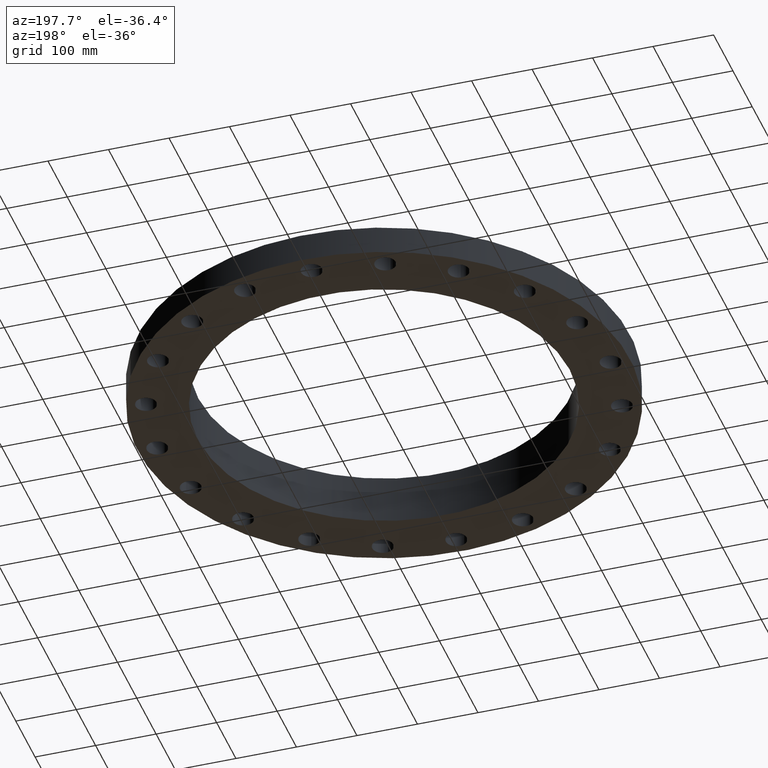
[diagram: clean part render]
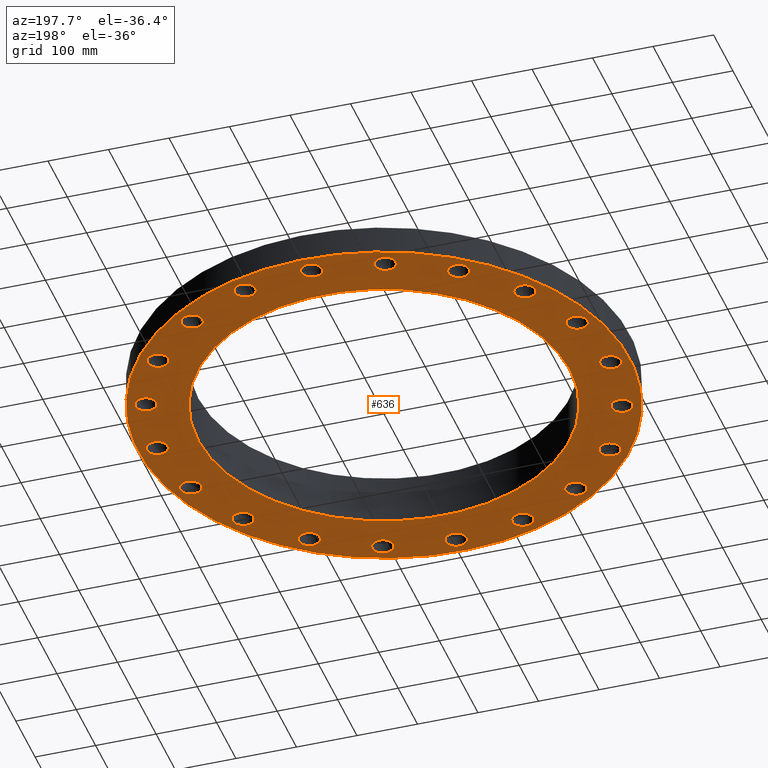
[diagram: same view with one face highlighted and labeled with its STEP entity id]
A machine part, auxiliary view. The second image highlights one B-rep face of the part: STEP entity #636.
In plain terms, the highlighted planar face has unit normal (0, 0, 1).
Its self-contained STEP definition (entity closure, byte-faithful):
#51=AXIS2_PLACEMENT_3D('Circle Axis2P3D',#49,#50,$) ;
#77=AXIS2_PLACEMENT_3D('Circle Axis2P3D',#75,#76,$) ;
#122=AXIS2_PLACEMENT_3D('Circle Axis2P3D',#120,#121,$) ;
#139=AXIS2_PLACEMENT_3D('Circle Axis2P3D',#137,#138,$) ;
#165=AXIS2_PLACEMENT_3D('Circle Axis2P3D',#163,#164,$) ;
#191=AXIS2_PLACEMENT_3D('Circle Axis2P3D',#189,#190,$) ;
#280=AXIS2_PLACEMENT_3D('Plane Axis2P3D',#277,#278,#279) ;
#296=AXIS2_PLACEMENT_3D('Circle Axis2P3D',#294,#295,$) ;
#305=AXIS2_PLACEMENT_3D('Circle Axis2P3D',#303,#304,$) ;
#314=AXIS2_PLACEMENT_3D('Circle Axis2P3D',#312,#313,$) ;
#323=AXIS2_PLACEMENT_3D('Circle Axis2P3D',#321,#322,$) ;
#332=AXIS2_PLACEMENT_3D('Circle Axis2P3D',#330,#331,$) ;
#341=AXIS2_PLACEMENT_3D('Circle Axis2P3D',#339,#340,$) ;
#350=AXIS2_PLACEMENT_3D('Circle Axis2P3D',#348,#349,$) ;
#359=AXIS2_PLACEMENT_3D('Circle Axis2P3D',#357,#358,$) ;
#368=AXIS2_PLACEMENT_3D('Circle Axis2P3D',#366,#367,$) ;
#377=AXIS2_PLACEMENT_3D('Circle Axis2P3D',#375,#376,$) ;
#386=AXIS2_PLACEMENT_3D('Circle Axis2P3D',#384,#385,$) ;
#395=AXIS2_PLACEMENT_3D('Circle Axis2P3D',#393,#394,$) ;
#404=AXIS2_PLACEMENT_3D('Circle Axis2P3D',#402,#403,$) ;
#413=AXIS2_PLACEMENT_3D('Circle Axis2P3D',#411,#412,$) ;
#422=AXIS2_PLACEMENT_3D('Circle Axis2P3D',#420,#421,$) ;
#431=AXIS2_PLACEMENT_3D('Circle Axis2P3D',#429,#430,$) ;
#440=AXIS2_PLACEMENT_3D('Circle Axis2P3D',#438,#439,$) ;
#449=AXIS2_PLACEMENT_3D('Circle Axis2P3D',#447,#448,$) ;
#458=AXIS2_PLACEMENT_3D('Circle Axis2P3D',#456,#457,$) ;
#467=AXIS2_PLACEMENT_3D('Circle Axis2P3D',#465,#466,$) ;
#476=AXIS2_PLACEMENT_3D('Circle Axis2P3D',#474,#475,$) ;
#485=AXIS2_PLACEMENT_3D('Circle Axis2P3D',#483,#484,$) ;
#494=AXIS2_PLACEMENT_3D('Circle Axis2P3D',#492,#493,$) ;
#503=AXIS2_PLACEMENT_3D('Circle Axis2P3D',#501,#502,$) ;
#512=AXIS2_PLACEMENT_3D('Circle Axis2P3D',#510,#511,$) ;
#521=AXIS2_PLACEMENT_3D('Circle Axis2P3D',#519,#520,$) ;
#530=AXIS2_PLACEMENT_3D('Circle Axis2P3D',#528,#529,$) ;
#539=AXIS2_PLACEMENT_3D('Circle Axis2P3D',#537,#538,$) ;
#548=AXIS2_PLACEMENT_3D('Circle Axis2P3D',#546,#547,$) ;
#557=AXIS2_PLACEMENT_3D('Circle Axis2P3D',#555,#556,$) ;
#566=AXIS2_PLACEMENT_3D('Circle Axis2P3D',#564,#565,$) ;
#575=AXIS2_PLACEMENT_3D('Circle Axis2P3D',#573,#574,$) ;
#584=AXIS2_PLACEMENT_3D('Circle Axis2P3D',#582,#583,$) ;
#593=AXIS2_PLACEMENT_3D('Circle Axis2P3D',#591,#592,$) ;
#602=AXIS2_PLACEMENT_3D('Circle Axis2P3D',#600,#601,$) ;
#611=AXIS2_PLACEMENT_3D('Circle Axis2P3D',#609,#610,$) ;
#620=AXIS2_PLACEMENT_3D('Circle Axis2P3D',#618,#619,$) ;
#629=AXIS2_PLACEMENT_3D('Circle Axis2P3D',#627,#628,$) ;
#44=CARTESIAN_POINT('Vertex',(14.1466619888,0.329605057792,0.)) ;
#49=CARTESIAN_POINT('Axis2P3D Location',(14.7500000001,0.,0.)) ;
#53=CARTESIAN_POINT('Vertex',(15.3533380114,-0.329605057792,0.)) ;
#75=CARTESIAN_POINT('Axis2P3D Location',(14.7500000001,0.,0.)) ;
#101=CARTESIAN_POINT('Vertex',(14.0413209903,7.6708086177,0.)) ;
#117=CARTESIAN_POINT('Vertex',(-14.0413209903,-7.6708086177,0.)) ;
#120=CARTESIAN_POINT('Axis2P3D Location',(0.,0.,0.)) ;
#137=CARTESIAN_POINT('Axis2P3D Location',(0.,0.,0.)) ;
#158=CARTESIAN_POINT('Vertex',(10.6143610861,-5.79865188944,0.)) ;
#163=CARTESIAN_POINT('Axis2P3D Location',(-6.64385432059E-016,-2.09805925913E-016,0.)) ;
#167=CARTESIAN_POINT('Vertex',(-10.6143610861,5.79865188944,0.)) ;
#189=CARTESIAN_POINT('Axis2P3D Location',(-6.64385432059E-016,-2.09805925913E-016,0.)) ;
#277=CARTESIAN_POINT('Axis2P3D Location',(0.,0.,0.)) ;
#294=CARTESIAN_POINT('Axis2P3D Location',(14.0280836154,4.55800066705,0.)) ;
#298=CARTESIAN_POINT('Vertex',(13.3524215039,4.68503200622,0.)) ;
#300=CARTESIAN_POINT('Vertex',(14.7037457269,4.43096932788,0.)) ;
#303=CARTESIAN_POINT('Axis2P3D Location',(14.0280836154,4.55800066705,0.)) ;
#312=CARTESIAN_POINT('Axis2P3D Location',(11.9330006671,8.66983247135,0.)) ;
#316=CARTESIAN_POINT('Vertex',(11.2511529705,8.58185537934,0.)) ;
#318=CARTESIAN_POINT('Vertex',(12.6148483636,8.75780956335,0.)) ;
#321=CARTESIAN_POINT('Axis2P3D Location',(11.9330006671,8.66983247135,0.)) ;
#330=CARTESIAN_POINT('Axis2P3D Location',(8.66983247135,11.9330006671,0.)) ;
#334=CARTESIAN_POINT('Vertex',(8.04854319297,11.6386269546,0.)) ;
#336=CARTESIAN_POINT('Vertex',(9.29112174972,12.2273743795,0.)) ;
#339=CARTESIAN_POINT('Axis2P3D Location',(8.66983247135,11.9330006671,0.)) ;
#348=CARTESIAN_POINT('Axis2P3D Location',(4.55800066705,14.0280836154,0.)) ;
#352=CARTESIAN_POINT('Vertex',(4.05808593019,13.5561286325,0.)) ;
#354=CARTESIAN_POINT('Vertex',(5.05791540391,14.5000385983,0.)) ;
#357=CARTESIAN_POINT('Axis2P3D Location',(4.55800066705,14.0280836154,0.)) ;
#366=CARTESIAN_POINT('Axis2P3D Location',(4.05624790099E-015,14.7500000001,0.)) ;
#370=CARTESIAN_POINT('Vertex',(-0.329605057792,14.1466619888,0.)) ;
#372=CARTESIAN_POINT('Vertex',(0.329605057792,15.3533380114,0.)) ;
#375=CARTESIAN_POINT('Axis2P3D Location',(4.96540691328E-015,14.7500000001,0.)) ;
#384=CARTESIAN_POINT('Axis2P3D Location',(-4.55800066705,14.0280836154,0.)) ;
#388=CARTESIAN_POINT('Vertex',(-4.68503200622,13.3524215039,0.)) ;
#390=CARTESIAN_POINT('Vertex',(-4.43096932788,14.7037457269,0.)) ;
#393=CARTESIAN_POINT('Axis2P3D Location',(-4.55800066705,14.0280836154,0.)) ;
#402=CARTESIAN_POINT('Axis2P3D Location',(-8.66983247135,11.9330006671,0.)) ;
#406=CARTESIAN_POINT('Vertex',(-8.58185537934,11.2511529705,0.)) ;
#408=CARTESIAN_POINT('Vertex',(-8.75780956335,12.6148483636,0.)) ;
#411=CARTESIAN_POINT('Axis2P3D Location',(-8.66983247135,11.9330006671,0.)) ;
#420=CARTESIAN_POINT('Axis2P3D Location',(-11.9330006671,8.66983247135,0.)) ;
#424=CARTESIAN_POINT('Vertex',(-11.6386269546,8.04854319297,0.)) ;
#426=CARTESIAN_POINT('Vertex',(-12.2273743795,9.29112174972,0.)) ;
#429=CARTESIAN_POINT('Axis2P3D Location',(-11.9330006671,8.66983247135,0.)) ;
#438=CARTESIAN_POINT('Axis2P3D Location',(-14.0280836154,4.55800066705,0.)) ;
#442=CARTESIAN_POINT('Vertex',(-13.5561286325,4.05808593019,0.)) ;
#444=CARTESIAN_POINT('Vertex',(-14.5000385983,5.05791540391,0.)) ;
#447=CARTESIAN_POINT('Axis2P3D Location',(-14.0280836154,4.55800066705,0.)) ;
#456=CARTESIAN_POINT('Axis2P3D Location',(-14.7500000001,7.90268987607E-015,0.)) ;
#460=CARTESIAN_POINT('Vertex',(-14.1466619888,-0.329605057792,0.)) ;
#462=CARTESIAN_POINT('Vertex',(-15.3533380114,0.329605057792,0.)) ;
#465=CARTESIAN_POINT('Axis2P3D Location',(-14.7500000001,9.65107259202E-015,0.)) ;
#474=CARTESIAN_POINT('Axis2P3D Location',(-14.0280836154,-4.55800066705,0.)) ;
#478=CARTESIAN_POINT('Vertex',(-13.3524215039,-4.68503200622,0.)) ;
#480=CARTESIAN_POINT('Vertex',(-14.7037457269,-4.43096932788,0.)) ;
#483=CARTESIAN_POINT('Axis2P3D Location',(-14.0280836154,-4.55800066705,0.)) ;
#492=CARTESIAN_POINT('Axis2P3D Location',(-11.9330006671,-8.66983247135,0.)) ;
#496=CARTESIAN_POINT('Vertex',(-11.2511529705,-8.58185537934,0.)) ;
#498=CARTESIAN_POINT('Vertex',(-12.6148483636,-8.75780956335,0.)) ;
#501=CARTESIAN_POINT('Axis2P3D Location',(-11.9330006671,-8.66983247135,0.)) ;
#510=CARTESIAN_POINT('Axis2P3D Location',(-8.66983247135,-11.9330006671,0.)) ;
#514=CARTESIAN_POINT('Vertex',(-8.04854319297,-11.6386269546,0.)) ;
#516=CARTESIAN_POINT('Vertex',(-9.29112174972,-12.2273743795,0.)) ;
#519=CARTESIAN_POINT('Axis2P3D Location',(-8.66983247135,-11.9330006671,0.)) ;
#528=CARTESIAN_POINT('Axis2P3D Location',(-4.55800066705,-14.0280836154,0.)) ;
#532=CARTESIAN_POINT('Vertex',(-4.05808593019,-13.5561286325,0.)) ;
#534=CARTESIAN_POINT('Vertex',(-5.05791540391,-14.5000385983,0.)) ;
#537=CARTESIAN_POINT('Axis2P3D Location',(-4.55800066705,-14.0280836154,0.)) ;
#546=CARTESIAN_POINT('Axis2P3D Location',(-1.49661560485E-014,-14.7500000001,0.)) ;
#550=CARTESIAN_POINT('Vertex',(0.329605057792,-14.1466619888,0.)) ;
#552=CARTESIAN_POINT('Vertex',(-0.329605057792,-15.3533380114,0.)) ;
#555=CARTESIAN_POINT('Axis2P3D Location',(-1.64347975299E-014,-14.7500000001,0.)) ;
#564=CARTESIAN_POINT('Axis2P3D Location',(4.55800066705,-14.0280836154,0.)) ;
#568=CARTESIAN_POINT('Vertex',(4.68503200622,-13.3524215039,0.)) ;
#570=CARTESIAN_POINT('Vertex',(4.43096932788,-14.7037457269,0.)) ;
#573=CARTESIAN_POINT('Axis2P3D Location',(4.55800066705,-14.0280836154,0.)) ;
#582=CARTESIAN_POINT('Axis2P3D Location',(8.66983247135,-11.9330006671,0.)) ;
#586=CARTESIAN_POINT('Vertex',(8.58185537934,-11.2511529705,0.)) ;
#588=CARTESIAN_POINT('Vertex',(8.75780956335,-12.6148483636,0.)) ;
#591=CARTESIAN_POINT('Axis2P3D Location',(8.66983247135,-11.9330006671,0.)) ;
#600=CARTESIAN_POINT('Axis2P3D Location',(11.9330006671,-8.66983247135,0.)) ;
#604=CARTESIAN_POINT('Vertex',(11.6386269546,-8.04854319297,0.)) ;
#606=CARTESIAN_POINT('Vertex',(12.2273743795,-9.29112174972,0.)) ;
#609=CARTESIAN_POINT('Axis2P3D Location',(11.9330006671,-8.66983247135,0.)) ;
#618=CARTESIAN_POINT('Axis2P3D Location',(14.0280836154,-4.55800066705,0.)) ;
#622=CARTESIAN_POINT('Vertex',(13.5561286325,-4.05808593019,0.)) ;
#624=CARTESIAN_POINT('Vertex',(14.5000385983,-5.05791540391,0.)) ;
#627=CARTESIAN_POINT('Axis2P3D Location',(14.0280836154,-4.55800066705,0.)) ;
#50=DIRECTION('Axis2P3D Direction',(0.,-0.,-0.0393700787402)) ;
#76=DIRECTION('Axis2P3D Direction',(0.,-0.,-0.0393700787402)) ;
#121=DIRECTION('Axis2P3D Direction',(0.,0.,0.0393700787402)) ;
#138=DIRECTION('Axis2P3D Direction',(0.,0.,0.0393700787402)) ;
#164=DIRECTION('Axis2P3D Direction',(0.,-0.,-0.0393700787402)) ;
#190=DIRECTION('Axis2P3D Direction',(0.,-0.,-0.0393700787402)) ;
#278=DIRECTION('Axis2P3D Direction',(0.,0.,0.0393700787402)) ;
#279=DIRECTION('Axis2P3D XDirection',(0.0393700787402,0.,0.)) ;
#295=DIRECTION('Axis2P3D Direction',(0.,0.,0.0393700787402)) ;
#304=DIRECTION('Axis2P3D Direction',(0.,0.,0.0393700787402)) ;
#313=DIRECTION('Axis2P3D Direction',(0.,0.,0.0393700787402)) ;
#322=DIRECTION('Axis2P3D Direction',(0.,0.,0.0393700787402)) ;
#331=DIRECTION('Axis2P3D Direction',(0.,0.,0.0393700787402)) ;
#340=DIRECTION('Axis2P3D Direction',(0.,0.,0.0393700787402)) ;
#349=DIRECTION('Axis2P3D Direction',(0.,0.,0.0393700787402)) ;
#358=DIRECTION('Axis2P3D Direction',(0.,0.,0.0393700787402)) ;
#367=DIRECTION('Axis2P3D Direction',(0.,0.,0.0393700787402)) ;
#376=DIRECTION('Axis2P3D Direction',(0.,0.,0.0393700787402)) ;
#385=DIRECTION('Axis2P3D Direction',(0.,0.,0.0393700787402)) ;
#394=DIRECTION('Axis2P3D Direction',(0.,0.,0.0393700787402)) ;
#403=DIRECTION('Axis2P3D Direction',(0.,0.,0.0393700787402)) ;
#412=DIRECTION('Axis2P3D Direction',(0.,0.,0.0393700787402)) ;
#421=DIRECTION('Axis2P3D Direction',(0.,0.,0.0393700787402)) ;
#430=DIRECTION('Axis2P3D Direction',(0.,0.,0.0393700787402)) ;
#439=DIRECTION('Axis2P3D Direction',(0.,0.,0.0393700787402)) ;
#448=DIRECTION('Axis2P3D Direction',(0.,0.,0.0393700787402)) ;
#457=DIRECTION('Axis2P3D Direction',(0.,0.,0.0393700787402)) ;
#466=DIRECTION('Axis2P3D Direction',(0.,0.,0.0393700787402)) ;
#475=DIRECTION('Axis2P3D Direction',(0.,0.,0.0393700787402)) ;
#484=DIRECTION('Axis2P3D Direction',(0.,0.,0.0393700787402)) ;
#493=DIRECTION('Axis2P3D Direction',(0.,0.,0.0393700787402)) ;
#502=DIRECTION('Axis2P3D Direction',(0.,0.,0.0393700787402)) ;
#511=DIRECTION('Axis2P3D Direction',(0.,0.,0.0393700787402)) ;
#520=DIRECTION('Axis2P3D Direction',(0.,0.,0.0393700787402)) ;
#529=DIRECTION('Axis2P3D Direction',(0.,0.,0.0393700787402)) ;
#538=DIRECTION('Axis2P3D Direction',(0.,0.,0.0393700787402)) ;
#547=DIRECTION('Axis2P3D Direction',(0.,0.,0.0393700787402)) ;
#556=DIRECTION('Axis2P3D Direction',(0.,0.,0.0393700787402)) ;
#565=DIRECTION('Axis2P3D Direction',(0.,0.,0.0393700787402)) ;
#574=DIRECTION('Axis2P3D Direction',(0.,0.,0.0393700787402)) ;
#583=DIRECTION('Axis2P3D Direction',(0.,0.,0.0393700787402)) ;
#592=DIRECTION('Axis2P3D Direction',(0.,0.,0.0393700787402)) ;
#601=DIRECTION('Axis2P3D Direction',(0.,0.,0.0393700787402)) ;
#610=DIRECTION('Axis2P3D Direction',(0.,0.,0.0393700787402)) ;
#619=DIRECTION('Axis2P3D Direction',(0.,0.,0.0393700787402)) ;
#628=DIRECTION('Axis2P3D Direction',(0.,0.,0.0393700787402)) ;
#283=ORIENTED_EDGE('',*,*,#124,.F.) ;
#284=ORIENTED_EDGE('',*,*,#141,.F.) ;
#287=ORIENTED_EDGE('',*,*,#55,.T.) ;
#288=ORIENTED_EDGE('',*,*,#79,.T.) ;
#291=ORIENTED_EDGE('',*,*,#193,.T.) ;
#292=ORIENTED_EDGE('',*,*,#169,.T.) ;
#309=ORIENTED_EDGE('',*,*,#302,.T.) ;
#310=ORIENTED_EDGE('',*,*,#307,.T.) ;
#327=ORIENTED_EDGE('',*,*,#320,.T.) ;
#328=ORIENTED_EDGE('',*,*,#325,.T.) ;
#345=ORIENTED_EDGE('',*,*,#338,.T.) ;
#346=ORIENTED_EDGE('',*,*,#343,.T.) ;
#363=ORIENTED_EDGE('',*,*,#356,.T.) ;
#364=ORIENTED_EDGE('',*,*,#361,.T.) ;
#381=ORIENTED_EDGE('',*,*,#374,.T.) ;
#382=ORIENTED_EDGE('',*,*,#379,.T.) ;
#399=ORIENTED_EDGE('',*,*,#392,.T.) ;
#400=ORIENTED_EDGE('',*,*,#397,.T.) ;
#417=ORIENTED_EDGE('',*,*,#410,.T.) ;
#418=ORIENTED_EDGE('',*,*,#415,.T.) ;
#435=ORIENTED_EDGE('',*,*,#428,.T.) ;
#436=ORIENTED_EDGE('',*,*,#433,.T.) ;
#453=ORIENTED_EDGE('',*,*,#446,.T.) ;
#454=ORIENTED_EDGE('',*,*,#451,.T.) ;
#471=ORIENTED_EDGE('',*,*,#464,.T.) ;
#472=ORIENTED_EDGE('',*,*,#469,.T.) ;
#489=ORIENTED_EDGE('',*,*,#482,.T.) ;
#490=ORIENTED_EDGE('',*,*,#487,.T.) ;
#507=ORIENTED_EDGE('',*,*,#500,.T.) ;
#508=ORIENTED_EDGE('',*,*,#505,.T.) ;
#525=ORIENTED_EDGE('',*,*,#518,.T.) ;
#526=ORIENTED_EDGE('',*,*,#523,.T.) ;
#543=ORIENTED_EDGE('',*,*,#536,.T.) ;
#544=ORIENTED_EDGE('',*,*,#541,.T.) ;
#561=ORIENTED_EDGE('',*,*,#554,.T.) ;
#562=ORIENTED_EDGE('',*,*,#559,.T.) ;
#579=ORIENTED_EDGE('',*,*,#572,.T.) ;
#580=ORIENTED_EDGE('',*,*,#577,.T.) ;
#597=ORIENTED_EDGE('',*,*,#590,.T.) ;
#598=ORIENTED_EDGE('',*,*,#595,.T.) ;
#615=ORIENTED_EDGE('',*,*,#608,.T.) ;
#616=ORIENTED_EDGE('',*,*,#613,.T.) ;
#633=ORIENTED_EDGE('',*,*,#626,.T.) ;
#634=ORIENTED_EDGE('',*,*,#631,.T.) ;
#289=FACE_BOUND('',#286,.T.) ;
#293=FACE_BOUND('',#290,.T.) ;
#311=FACE_BOUND('',#308,.T.) ;
#329=FACE_BOUND('',#326,.T.) ;
#347=FACE_BOUND('',#344,.T.) ;
#365=FACE_BOUND('',#362,.T.) ;
#383=FACE_BOUND('',#380,.T.) ;
#401=FACE_BOUND('',#398,.T.) ;
#419=FACE_BOUND('',#416,.T.) ;
#437=FACE_BOUND('',#434,.T.) ;
#455=FACE_BOUND('',#452,.T.) ;
#473=FACE_BOUND('',#470,.T.) ;
#491=FACE_BOUND('',#488,.T.) ;
#509=FACE_BOUND('',#506,.T.) ;
#527=FACE_BOUND('',#524,.T.) ;
#545=FACE_BOUND('',#542,.T.) ;
#563=FACE_BOUND('',#560,.T.) ;
#581=FACE_BOUND('',#578,.T.) ;
#599=FACE_BOUND('',#596,.T.) ;
#617=FACE_BOUND('',#614,.T.) ;
#635=FACE_BOUND('',#632,.T.) ;
#636=ADVANCED_FACE('PartBody',(#285,#289,#293,#311,#329,#347,#365,#383,#401,#419,#437,#455,#473,#491,#509,#527,#545,#563,#581,#599,#617,#635),#281,.F.) ;
#52=CIRCLE('generated circle',#51,0.687500000003) ;
#78=CIRCLE('generated circle',#77,0.687500000003) ;
#123=CIRCLE('generated circle',#122,16.0000000001) ;
#140=CIRCLE('generated circle',#139,16.0000000001) ;
#166=CIRCLE('generated circle',#165,12.095) ;
#192=CIRCLE('generated circle',#191,12.095) ;
#297=CIRCLE('generated circle',#296,0.687500000003) ;
#306=CIRCLE('generated circle',#305,0.687500000003) ;
#315=CIRCLE('generated circle',#314,0.687500000003) ;
#324=CIRCLE('generated circle',#323,0.687500000003) ;
#333=CIRCLE('generated circle',#332,0.687500000003) ;
#342=CIRCLE('generated circle',#341,0.687500000003) ;
#351=CIRCLE('generated circle',#350,0.687500000003) ;
#360=CIRCLE('generated circle',#359,0.687500000003) ;
#369=CIRCLE('generated circle',#368,0.687500000003) ;
#378=CIRCLE('generated circle',#377,0.687500000003) ;
#387=CIRCLE('generated circle',#386,0.687500000003) ;
#396=CIRCLE('generated circle',#395,0.687500000003) ;
#405=CIRCLE('generated circle',#404,0.687500000003) ;
#414=CIRCLE('generated circle',#413,0.687500000003) ;
#423=CIRCLE('generated circle',#422,0.687500000003) ;
#432=CIRCLE('generated circle',#431,0.687500000003) ;
#441=CIRCLE('generated circle',#440,0.687500000003) ;
#450=CIRCLE('generated circle',#449,0.687500000003) ;
#459=CIRCLE('generated circle',#458,0.687500000003) ;
#468=CIRCLE('generated circle',#467,0.687500000003) ;
#477=CIRCLE('generated circle',#476,0.687500000003) ;
#486=CIRCLE('generated circle',#485,0.687500000003) ;
#495=CIRCLE('generated circle',#494,0.687500000003) ;
#504=CIRCLE('generated circle',#503,0.687500000003) ;
#513=CIRCLE('generated circle',#512,0.687500000003) ;
#522=CIRCLE('generated circle',#521,0.687500000003) ;
#531=CIRCLE('generated circle',#530,0.687500000003) ;
#540=CIRCLE('generated circle',#539,0.687500000003) ;
#549=CIRCLE('generated circle',#548,0.687500000003) ;
#558=CIRCLE('generated circle',#557,0.687500000003) ;
#567=CIRCLE('generated circle',#566,0.687500000003) ;
#576=CIRCLE('generated circle',#575,0.687500000003) ;
#585=CIRCLE('generated circle',#584,0.687500000003) ;
#594=CIRCLE('generated circle',#593,0.687500000003) ;
#603=CIRCLE('generated circle',#602,0.687500000003) ;
#612=CIRCLE('generated circle',#611,0.687500000003) ;
#621=CIRCLE('generated circle',#620,0.687500000003) ;
#630=CIRCLE('generated circle',#629,0.687500000003) ;
#55=EDGE_CURVE('',#54,#45,#52,.F.) ;
#79=EDGE_CURVE('',#45,#54,#78,.F.) ;
#124=EDGE_CURVE('',#118,#102,#123,.T.) ;
#141=EDGE_CURVE('',#102,#118,#140,.T.) ;
#169=EDGE_CURVE('',#168,#159,#166,.F.) ;
#193=EDGE_CURVE('',#159,#168,#192,.F.) ;
#302=EDGE_CURVE('',#299,#301,#297,.T.) ;
#307=EDGE_CURVE('',#301,#299,#306,.T.) ;
#320=EDGE_CURVE('',#317,#319,#315,.T.) ;
#325=EDGE_CURVE('',#319,#317,#324,.T.) ;
#338=EDGE_CURVE('',#335,#337,#333,.T.) ;
#343=EDGE_CURVE('',#337,#335,#342,.T.) ;
#356=EDGE_CURVE('',#353,#355,#351,.T.) ;
#361=EDGE_CURVE('',#355,#353,#360,.T.) ;
#374=EDGE_CURVE('',#371,#373,#369,.T.) ;
#379=EDGE_CURVE('',#373,#371,#378,.T.) ;
#392=EDGE_CURVE('',#389,#391,#387,.T.) ;
#397=EDGE_CURVE('',#391,#389,#396,.T.) ;
#410=EDGE_CURVE('',#407,#409,#405,.T.) ;
#415=EDGE_CURVE('',#409,#407,#414,.T.) ;
#428=EDGE_CURVE('',#425,#427,#423,.T.) ;
#433=EDGE_CURVE('',#427,#425,#432,.T.) ;
#446=EDGE_CURVE('',#443,#445,#441,.T.) ;
#451=EDGE_CURVE('',#445,#443,#450,.T.) ;
#464=EDGE_CURVE('',#461,#463,#459,.T.) ;
#469=EDGE_CURVE('',#463,#461,#468,.T.) ;
#482=EDGE_CURVE('',#479,#481,#477,.T.) ;
#487=EDGE_CURVE('',#481,#479,#486,.T.) ;
#500=EDGE_CURVE('',#497,#499,#495,.T.) ;
#505=EDGE_CURVE('',#499,#497,#504,.T.) ;
#518=EDGE_CURVE('',#515,#517,#513,.T.) ;
#523=EDGE_CURVE('',#517,#515,#522,.T.) ;
#536=EDGE_CURVE('',#533,#535,#531,.T.) ;
#541=EDGE_CURVE('',#535,#533,#540,.T.) ;
#554=EDGE_CURVE('',#551,#553,#549,.T.) ;
#559=EDGE_CURVE('',#553,#551,#558,.T.) ;
#572=EDGE_CURVE('',#569,#571,#567,.T.) ;
#577=EDGE_CURVE('',#571,#569,#576,.T.) ;
#590=EDGE_CURVE('',#587,#589,#585,.T.) ;
#595=EDGE_CURVE('',#589,#587,#594,.T.) ;
#608=EDGE_CURVE('',#605,#607,#603,.T.) ;
#613=EDGE_CURVE('',#607,#605,#612,.T.) ;
#626=EDGE_CURVE('',#623,#625,#621,.T.) ;
#631=EDGE_CURVE('',#625,#623,#630,.T.) ;
#282=EDGE_LOOP('',(#283,#284)) ;
#286=EDGE_LOOP('',(#287,#288)) ;
#290=EDGE_LOOP('',(#291,#292)) ;
#308=EDGE_LOOP('',(#309,#310)) ;
#326=EDGE_LOOP('',(#327,#328)) ;
#344=EDGE_LOOP('',(#345,#346)) ;
#362=EDGE_LOOP('',(#363,#364)) ;
#380=EDGE_LOOP('',(#381,#382)) ;
#398=EDGE_LOOP('',(#399,#400)) ;
#416=EDGE_LOOP('',(#417,#418)) ;
#434=EDGE_LOOP('',(#435,#436)) ;
#452=EDGE_LOOP('',(#453,#454)) ;
#470=EDGE_LOOP('',(#471,#472)) ;
#488=EDGE_LOOP('',(#489,#490)) ;
#506=EDGE_LOOP('',(#507,#508)) ;
#524=EDGE_LOOP('',(#525,#526)) ;
#542=EDGE_LOOP('',(#543,#544)) ;
#560=EDGE_LOOP('',(#561,#562)) ;
#578=EDGE_LOOP('',(#579,#580)) ;
#596=EDGE_LOOP('',(#597,#598)) ;
#614=EDGE_LOOP('',(#615,#616)) ;
#632=EDGE_LOOP('',(#633,#634)) ;
#285=FACE_OUTER_BOUND('',#282,.T.) ;
#281=PLANE('',#280) ;
#45=VERTEX_POINT('',#44) ;
#54=VERTEX_POINT('',#53) ;
#102=VERTEX_POINT('',#101) ;
#118=VERTEX_POINT('',#117) ;
#159=VERTEX_POINT('',#158) ;
#168=VERTEX_POINT('',#167) ;
#299=VERTEX_POINT('',#298) ;
#301=VERTEX_POINT('',#300) ;
#317=VERTEX_POINT('',#316) ;
#319=VERTEX_POINT('',#318) ;
#335=VERTEX_POINT('',#334) ;
#337=VERTEX_POINT('',#336) ;
#353=VERTEX_POINT('',#352) ;
#355=VERTEX_POINT('',#354) ;
#371=VERTEX_POINT('',#370) ;
#373=VERTEX_POINT('',#372) ;
#389=VERTEX_POINT('',#388) ;
#391=VERTEX_POINT('',#390) ;
#407=VERTEX_POINT('',#406) ;
#409=VERTEX_POINT('',#408) ;
#425=VERTEX_POINT('',#424) ;
#427=VERTEX_POINT('',#426) ;
#443=VERTEX_POINT('',#442) ;
#445=VERTEX_POINT('',#444) ;
#461=VERTEX_POINT('',#460) ;
#463=VERTEX_POINT('',#462) ;
#479=VERTEX_POINT('',#478) ;
#481=VERTEX_POINT('',#480) ;
#497=VERTEX_POINT('',#496) ;
#499=VERTEX_POINT('',#498) ;
#515=VERTEX_POINT('',#514) ;
#517=VERTEX_POINT('',#516) ;
#533=VERTEX_POINT('',#532) ;
#535=VERTEX_POINT('',#534) ;
#551=VERTEX_POINT('',#550) ;
#553=VERTEX_POINT('',#552) ;
#569=VERTEX_POINT('',#568) ;
#571=VERTEX_POINT('',#570) ;
#587=VERTEX_POINT('',#586) ;
#589=VERTEX_POINT('',#588) ;
#605=VERTEX_POINT('',#604) ;
#607=VERTEX_POINT('',#606) ;
#623=VERTEX_POINT('',#622) ;
#625=VERTEX_POINT('',#624) ;